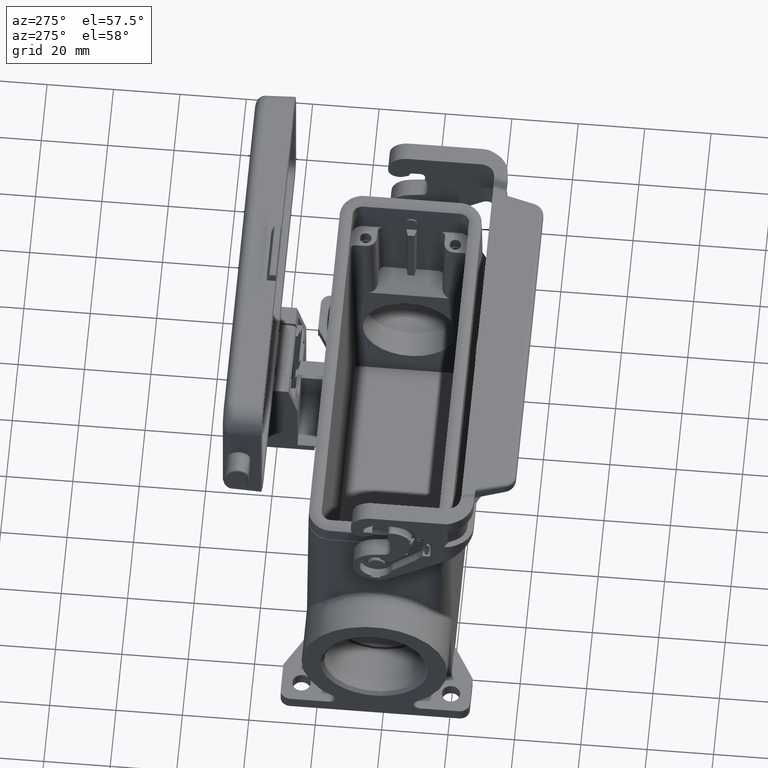
[diagram: clean part render]
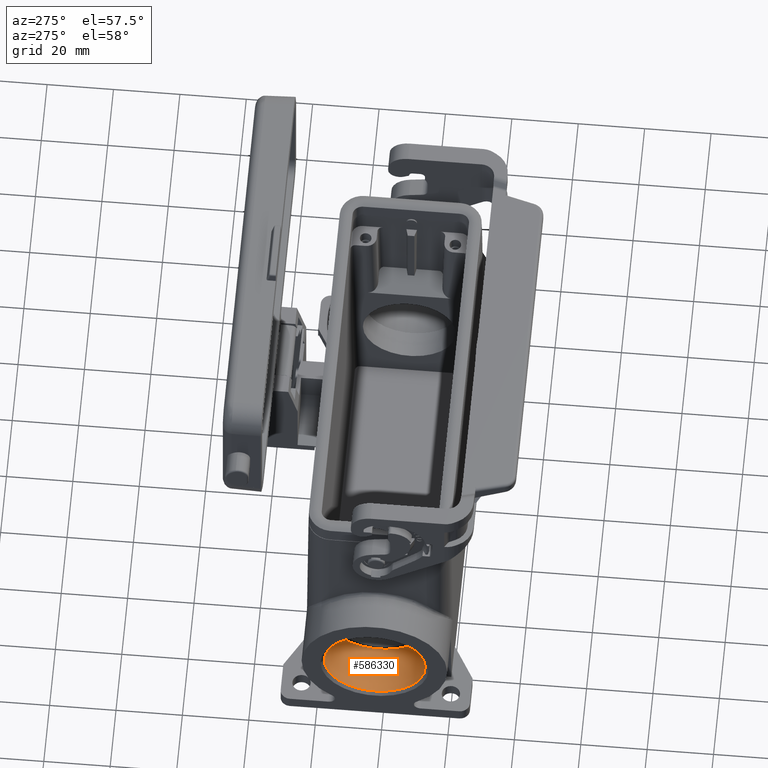
[diagram: same view with one face highlighted and labeled with its STEP entity id]
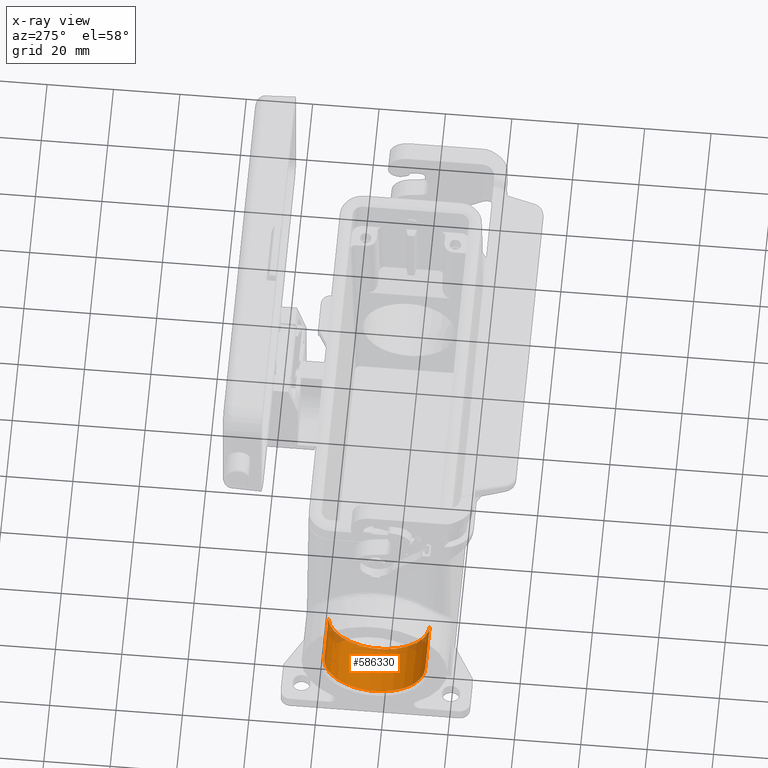
[diagram: x-ray of the same camera — body ghosted, the highlighted face saturated]
A machine part, auxiliary view. The second image highlights one B-rep face of the part: STEP entity #586330.
The next image is the same camera in x-ray: the body ghosted, the highlighted face saturated — about 6% of this face is hidden behind the body in this view.
In plain terms, the highlighted cylindrical surface (partial cylindrical patch) has radius 15.25 mm, axis along (1, -0, 0).
Its self-contained STEP definition (entity closure, byte-faithful):
#67620=CARTESIAN_POINT('',(132.318578,55.45508,24.5));
#67630=DIRECTION('',(-1.,0.,0.));
#67640=VECTOR('',#67630,1.);
#67650=LINE('',#67620,#67640);
#67660=CARTESIAN_POINT('',(131.318578,55.45508,24.5));
#67670=VERTEX_POINT('',#67660);
#67680=CARTESIAN_POINT('',(116.318578,55.45508,24.5));
#67690=VERTEX_POINT('',#67680);
#67700=EDGE_CURVE('',#67670,#67690,#67650,.T.);
#67720=CARTESIAN_POINT('',(116.318578,40.20508,24.5));
#67730=DIRECTION('',(-1.,0.,0.));
#67740=DIRECTION('',(0.,1.,2.44929359829471E-16));
#67750=AXIS2_PLACEMENT_3D('',#67720,#67730,#67740);
#67760=CIRCLE('',#67750,15.25);
#67770=CARTESIAN_POINT('',(116.318578,24.95508,24.5));
#67780=VERTEX_POINT('',#67770);
#67810=CARTESIAN_POINT('',(132.318578,24.95508,24.5));
#67820=DIRECTION('',(-1.,0.,0.));
#67830=VECTOR('',#67820,1.);
#67840=LINE('',#67810,#67830);
#67850=CARTESIAN_POINT('',(131.318578,24.95508,24.5));
#67860=VERTEX_POINT('',#67850);
#67870=EDGE_CURVE('',#67860,#67780,#67840,.T.);
#67890=CARTESIAN_POINT('',(131.318578,40.20508,24.5));
#67900=DIRECTION('',(-1.,0.,0.));
#67910=DIRECTION('',(0.,1.,0.));
#67920=AXIS2_PLACEMENT_3D('',#67890,#67900,#67910);
#67930=CIRCLE('',#67920,15.25);
#68260=EDGE_CURVE('',#67690,#67780,#67760,.T.);
#581740=EDGE_CURVE('',#67670,#67860,#67930,.T.);
#586220=CARTESIAN_POINT('',(132.318578,40.20508,24.5));
#586230=DIRECTION('',(-1.,0.,0.));
#586240=DIRECTION('',(0.,1.,2.44929359829471E-16));
#586250=AXIS2_PLACEMENT_3D('',#586220,#586230,#586240);
#586260=CYLINDRICAL_SURFACE('',#586250,15.25);
#586270=ORIENTED_EDGE('',*,*,#581740,.F.);
#586280=ORIENTED_EDGE('',*,*,#67870,.F.);
#586290=ORIENTED_EDGE('',*,*,#68260,.T.);
#586300=ORIENTED_EDGE('',*,*,#67700,.T.);
#586310=EDGE_LOOP('',(#586300,#586290,#586280,#586270));
#586320=FACE_OUTER_BOUND('',#586310,.T.);
#586330=ADVANCED_FACE('',(#586320),#586260,.F.);